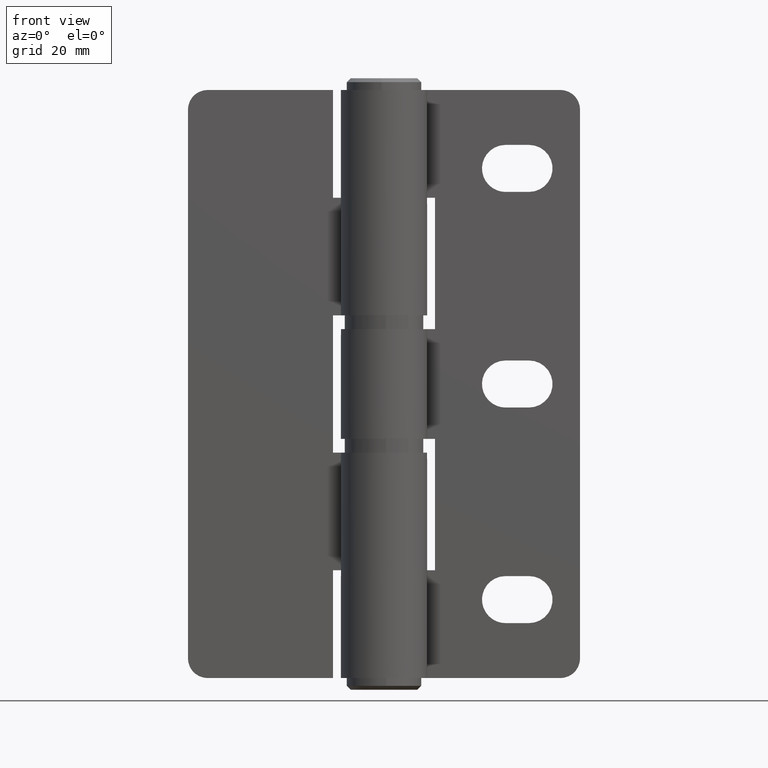
[diagram: clean part render]
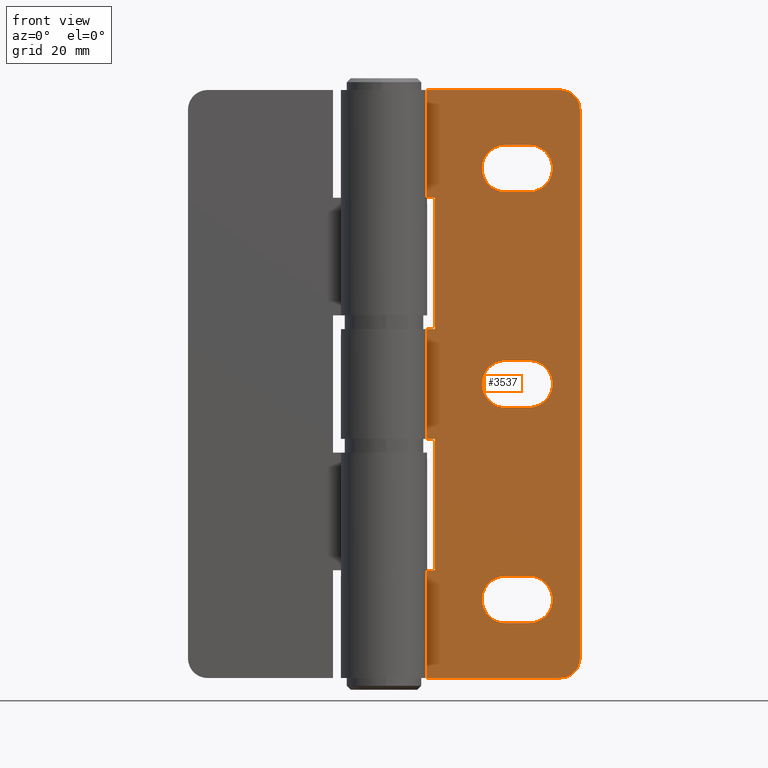
[diagram: same view with one face highlighted and labeled with its STEP entity id]
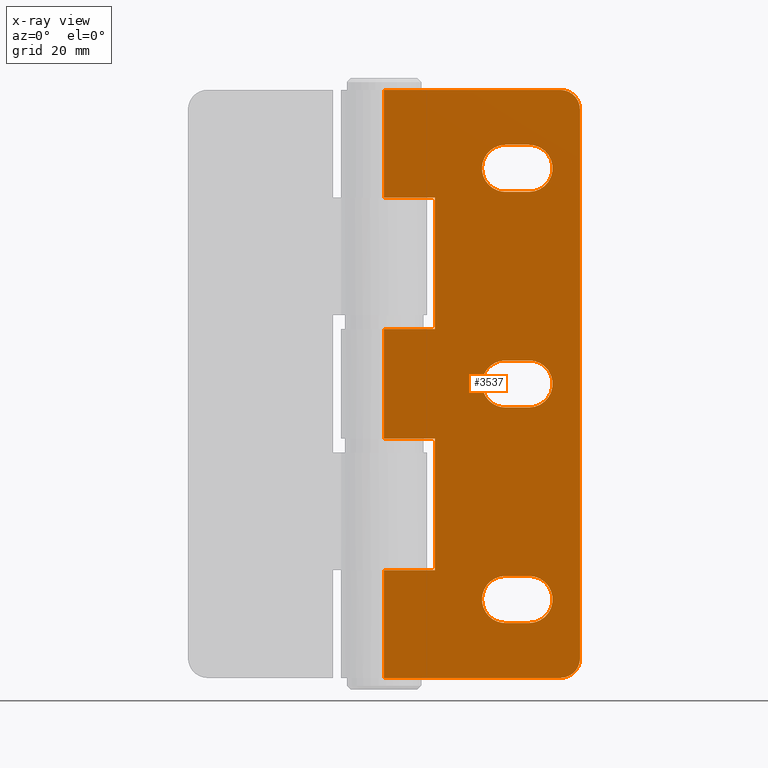
[diagram: x-ray of the same camera — body ghosted, the highlighted face saturated]
A machine part, front view. The second image highlights one B-rep face of the part: STEP entity #3537.
The next image is the same camera in x-ray: the body ghosted, the highlighted face saturated — about 0% of this face is hidden behind the body in this view.
In plain terms, the highlighted face is a freeform B-spline surface patch.
Its self-contained STEP definition (entity closure, byte-faithful):
#2177=CARTESIAN_POINT('',(13.0,6.0,89.0));
#2178=VERTEX_POINT('',#2177);
#2221=CARTESIAN_POINT('',(-8.881784E-016,6.0,89.0));
#2222=VERTEX_POINT('',#2221);
#2242=CARTESIAN_POINT('',(13.0,6.0,89.0));
#2243=CARTESIAN_POINT('',(-8.881784E-016,6.0,89.0));
#2244=QUASI_UNIFORM_CURVE('',1,(#2242,#2243),.UNSPECIFIED.,.F.,.U.);
#2245=EDGE_CURVE('',#2178,#2222,#2244,.T.);
#2257=CARTESIAN_POINT('',(-8.881784E-016,6.0,122.500000000000000));
#2258=VERTEX_POINT('',#2257);
#2313=CARTESIAN_POINT('',(13.0,6.0,122.500000000000000));
#2314=VERTEX_POINT('',#2313);
#2320=CARTESIAN_POINT('',(-8.881784E-016,6.0,122.500000000000000));
#2321=CARTESIAN_POINT('',(13.0,6.0,122.500000000000000));
#2322=QUASI_UNIFORM_CURVE('',1,(#2320,#2321),.UNSPECIFIED.,.F.,.U.);
#2323=EDGE_CURVE('',#2258,#2314,#2322,.T.);
#2340=CARTESIAN_POINT('',(13.0,6.0,122.500000000000000));
#2341=CARTESIAN_POINT('',(13.0,6.0,89.0));
#2342=QUASI_UNIFORM_CURVE('',1,(#2340,#2341),.UNSPECIFIED.,.F.,.U.);
#2343=EDGE_CURVE('',#2314,#2178,#2342,.T.);
#2383=CARTESIAN_POINT('',(-8.881784E-016,6.0,27.500000000000000));
#2384=VERTEX_POINT('',#2383);
#2404=CARTESIAN_POINT('',(13.0,6.0,27.500000000000000));
#2405=VERTEX_POINT('',#2404);
#2406=CARTESIAN_POINT('',(13.0,6.0,27.500000000000000));
#2407=CARTESIAN_POINT('',(-8.881784E-016,6.0,27.500000000000000));
#2408=QUASI_UNIFORM_CURVE('',1,(#2406,#2407),.UNSPECIFIED.,.F.,.U.);
#2409=EDGE_CURVE('',#2405,#2384,#2408,.T.);
#2433=CARTESIAN_POINT('',(-8.881784E-016,6.0,61.0));
#2434=VERTEX_POINT('',#2433);
#2489=CARTESIAN_POINT('',(13.0,6.0,61.0));
#2490=VERTEX_POINT('',#2489);
#2496=CARTESIAN_POINT('',(-8.881784E-016,6.0,61.0));
#2497=CARTESIAN_POINT('',(13.0,6.0,61.0));
#2498=QUASI_UNIFORM_CURVE('',1,(#2496,#2497),.UNSPECIFIED.,.F.,.U.);
#2499=EDGE_CURVE('',#2434,#2490,#2498,.T.);
#2516=CARTESIAN_POINT('',(13.0,6.0,61.0));
#2517=CARTESIAN_POINT('',(13.0,6.0,27.500000000000000));
#2518=QUASI_UNIFORM_CURVE('',1,(#2516,#2517),.UNSPECIFIED.,.F.,.U.);
#2519=EDGE_CURVE('',#2490,#2405,#2518,.T.);
#2538=CARTESIAN_POINT('',(45.0,6.0,0.0));
#2539=VERTEX_POINT('',#2538);
#2540=CARTESIAN_POINT('',(50.0,6.0,5.0));
#2541=VERTEX_POINT('',#2540);
#2542=CARTESIAN_POINT('',(45.0,6.0,0.0));
#2543=CARTESIAN_POINT('',(49.999999999999986,6.0,0.0));
#2544=CARTESIAN_POINT('',(49.999999999999993,6.0,5.0));
#2552=(BOUNDED_CURVE()B_SPLINE_CURVE(2,(#2542,#2543,#2544),.UNSPECIFIED.,.F.,.U.)CURVE()GEOMETRIC_REPRESENTATION_ITEM()QUASI_UNIFORM_CURVE()RATIONAL_B_SPLINE_CURVE((1.0,0.707106781186548,1.0))REPRESENTATION_ITEM(''));
#2553=EDGE_CURVE('',#2539,#2541,#2552,.T.);
#2599=CARTESIAN_POINT('',(50.0,6.0,145.0));
#2600=VERTEX_POINT('',#2599);
#2601=CARTESIAN_POINT('',(45.0,6.0,150.0));
#2602=VERTEX_POINT('',#2601);
#2603=CARTESIAN_POINT('',(49.999999999999993,6.0,145.0));
#2604=CARTESIAN_POINT('',(49.999999999999986,6.0,149.999999999999940));
#2605=CARTESIAN_POINT('',(45.0,6.0,150.0));
#2613=(BOUNDED_CURVE()B_SPLINE_CURVE(2,(#2603,#2604,#2605),.UNSPECIFIED.,.F.,.U.)CURVE()GEOMETRIC_REPRESENTATION_ITEM()QUASI_UNIFORM_CURVE()RATIONAL_B_SPLINE_CURVE((1.0,0.707106781186548,1.0))REPRESENTATION_ITEM(''));
#2614=EDGE_CURVE('',#2600,#2602,#2613,.T.);
#2683=CARTESIAN_POINT('',(31.0,6.0,136.0));
#2684=VERTEX_POINT('',#2683);
#2690=CARTESIAN_POINT('',(31.0,6.0,124.0));
#2691=VERTEX_POINT('',#2690);
#2692=CARTESIAN_POINT('',(31.0,6.0,136.0));
#2693=CARTESIAN_POINT('',(25.0,6.0,136.0));
#2694=CARTESIAN_POINT('',(25.0,6.0,130.0));
#2695=CARTESIAN_POINT('',(25.0,6.0,124.000000000000010));
#2696=CARTESIAN_POINT('',(31.0,6.0,124.0));
#2704=(BOUNDED_CURVE()B_SPLINE_CURVE(2,(#2692,#2693,#2694,#2695,#2696),.UNSPECIFIED.,.F.,.U.)B_SPLINE_CURVE_WITH_KNOTS((3,2,3),(0.0,0.500000000000000,1.0),.UNSPECIFIED.)CURVE()GEOMETRIC_REPRESENTATION_ITEM()RATIONAL_B_SPLINE_CURVE((1.0,0.707106781186548,1.0,0.707106781186548,1.0))REPRESENTATION_ITEM(''));
#2705=EDGE_CURVE('',#2684,#2691,#2704,.T.);
#2728=CARTESIAN_POINT('',(36.999999685840748,6.0,124.0));
#2729=VERTEX_POINT('',#2728);
#2730=CARTESIAN_POINT('',(36.999999685840748,6.0,124.0));
#2731=CARTESIAN_POINT('',(31.0,6.0,124.0));
#2732=QUASI_UNIFORM_CURVE('',1,(#2730,#2731),.UNSPECIFIED.,.F.,.U.);
#2733=EDGE_CURVE('',#2729,#2691,#2732,.T.);
#2781=CARTESIAN_POINT('',(36.999999685840748,6.0,136.0));
#2782=VERTEX_POINT('',#2781);
#2783=CARTESIAN_POINT('',(36.999999685840748,6.0,124.0));
#2784=CARTESIAN_POINT('',(40.464101440604850,6.000000000000001,123.999999818620100));
#2785=CARTESIAN_POINT('',(42.196152370346752,6.0,126.999999909310110));
#2786=CARTESIAN_POINT('',(43.928203300088676,6.000000000000001,130.000000000000030));
#2787=CARTESIAN_POINT('',(42.196152370346752,6.0,133.000000090690010));
#2788=CARTESIAN_POINT('',(40.464101440604850,6.000000000000001,136.000000181379870));
#2789=CARTESIAN_POINT('',(36.999999685840748,6.0,136.0));
#2797=(BOUNDED_CURVE()B_SPLINE_CURVE(2,(#2783,#2784,#2785,#2786,#2787,#2788,#2789),.UNSPECIFIED.,.F.,.U.)B_SPLINE_CURVE_WITH_KNOTS((3,2,2,3),(0.0,0.333333333333333,0.666666666666667,1.0),.UNSPECIFIED.)CURVE()GEOMETRIC_REPRESENTATION_ITEM()RATIONAL_B_SPLINE_CURVE((1.0,0.866025395057793,1.0,0.866025395057793,1.0,0.866025395057793,1.0))REPRESENTATION_ITEM(''));
#2798=EDGE_CURVE('',#2729,#2782,#2797,.T.);
#2819=CARTESIAN_POINT('',(31.0,6.0,136.0));
#2820=CARTESIAN_POINT('',(36.999999685840748,6.0,136.0));
#2821=QUASI_UNIFORM_CURVE('',1,(#2819,#2820),.UNSPECIFIED.,.F.,.U.);
#2822=EDGE_CURVE('',#2684,#2782,#2821,.T.);
#2865=CARTESIAN_POINT('',(31.0,6.0,81.0));
#2866=VERTEX_POINT('',#2865);
#2872=CARTESIAN_POINT('',(31.0,6.0,69.0));
#2873=VERTEX_POINT('',#2872);
#2874=CARTESIAN_POINT('',(31.0,6.0,81.0));
#2875=CARTESIAN_POINT('',(25.0,6.0,81.0));
#2876=CARTESIAN_POINT('',(25.0,6.0,75.0));
#2877=CARTESIAN_POINT('',(25.0,6.0,69.0));
#2878=CARTESIAN_POINT('',(31.0,6.0,68.999999999999986));
#2886=(BOUNDED_CURVE()B_SPLINE_CURVE(2,(#2874,#2875,#2876,#2877,#2878),.UNSPECIFIED.,.F.,.U.)B_SPLINE_CURVE_WITH_KNOTS((3,2,3),(0.0,0.500000000000000,1.0),.UNSPECIFIED.)CURVE()GEOMETRIC_REPRESENTATION_ITEM()RATIONAL_B_SPLINE_CURVE((1.0,0.707106781186548,1.0,0.707106781186548,1.0))REPRESENTATION_ITEM(''));
#2887=EDGE_CURVE('',#2866,#2873,#2886,.T.);
#2910=CARTESIAN_POINT('',(36.999999685840748,6.0,69.0));
#2911=VERTEX_POINT('',#2910);
#2912=CARTESIAN_POINT('',(36.999999685840748,6.0,69.0));
#2913=CARTESIAN_POINT('',(31.0,6.0,69.0));
#2914=QUASI_UNIFORM_CURVE('',1,(#2912,#2913),.UNSPECIFIED.,.F.,.U.);
#2915=EDGE_CURVE('',#2911,#2873,#2914,.T.);
#2963=CARTESIAN_POINT('',(36.999999685840748,6.0,81.0));
#2964=VERTEX_POINT('',#2963);
#2965=CARTESIAN_POINT('',(36.999999685840748,6.0,69.0));
#2966=CARTESIAN_POINT('',(40.464101440604850,6.000000000000001,68.999999818620068));
#2967=CARTESIAN_POINT('',(42.196152370346752,6.0,71.999999909310034));
#2968=CARTESIAN_POINT('',(43.928203300088676,6.000000000000001,75.0));
#2969=CARTESIAN_POINT('',(42.196152370346752,6.0,78.000000090689952));
#2970=CARTESIAN_POINT('',(40.464101440604850,6.000000000000001,81.000000181379932));
#2971=CARTESIAN_POINT('',(36.999999685840748,6.0,80.999999999999986));
#2979=(BOUNDED_CURVE()B_SPLINE_CURVE(2,(#2965,#2966,#2967,#2968,#2969,#2970,#2971),.UNSPECIFIED.,.F.,.U.)B_SPLINE_CURVE_WITH_KNOTS((3,2,2,3),(0.0,0.333333333333333,0.666666666666667,1.0),.UNSPECIFIED.)CURVE()GEOMETRIC_REPRESENTATION_ITEM()RATIONAL_B_SPLINE_CURVE((1.0,0.866025395057793,1.0,0.866025395057793,1.0,0.866025395057793,1.0))REPRESENTATION_ITEM(''));
#2980=EDGE_CURVE('',#2911,#2964,#2979,.T.);
#3001=CARTESIAN_POINT('',(31.0,6.0,81.0));
#3002=CARTESIAN_POINT('',(36.999999685840748,6.0,81.0));
#3003=QUASI_UNIFORM_CURVE('',1,(#3001,#3002),.UNSPECIFIED.,.F.,.U.);
#3004=EDGE_CURVE('',#2866,#2964,#3003,.T.);
#3049=CARTESIAN_POINT('',(37.0,6.0,14.0));
#3050=VERTEX_POINT('',#3049);
#3056=CARTESIAN_POINT('',(36.999999685840748,6.0,26.0));
#3057=VERTEX_POINT('',#3056);
#3058=CARTESIAN_POINT('',(37.0,6.0,14.0));
#3059=CARTESIAN_POINT('',(40.464101684950919,6.0,14.0));
#3060=CARTESIAN_POINT('',(42.196152475066498,6.0,17.000000090689959));
#3061=CARTESIAN_POINT('',(43.928203265182105,6.0,20.000000181379932));
#3062=CARTESIAN_POINT('',(42.196152317986872,6.0,23.000000181379932));
#3063=CARTESIAN_POINT('',(40.464101370791653,6.0,26.000000181379928));
#3064=CARTESIAN_POINT('',(36.999999685840748,6.0,25.999999999999989));
#3072=(BOUNDED_CURVE()B_SPLINE_CURVE(2,(#3058,#3059,#3060,#3061,#3062,#3063,#3064),.UNSPECIFIED.,.F.,.U.)B_SPLINE_CURVE_WITH_KNOTS((3,2,2,3),(0.0,0.333333333333333,0.666666666666667,1.0),.UNSPECIFIED.)CURVE()GEOMETRIC_REPRESENTATION_ITEM()RATIONAL_B_SPLINE_CURVE((1.0,0.866025399421116,1.0,0.866025399421116,1.0,0.866025399421116,1.0))REPRESENTATION_ITEM(''));
#3073=EDGE_CURVE('',#3050,#3057,#3072,.T.);
#3095=CARTESIAN_POINT('',(31.000000104719749,6.0,14.0));
#3096=VERTEX_POINT('',#3095);
#3102=CARTESIAN_POINT('',(31.000000104719749,6.0,14.0));
#3103=CARTESIAN_POINT('',(37.0,6.0,14.0));
#3104=QUASI_UNIFORM_CURVE('',1,(#3102,#3103),.UNSPECIFIED.,.F.,.U.);
#3105=EDGE_CURVE('',#3096,#3050,#3104,.T.);
#3146=CARTESIAN_POINT('',(30.999999685840748,6.0,26.0));
#3147=VERTEX_POINT('',#3146);
#3153=CARTESIAN_POINT('',(30.999999685840748,6.0,25.999999999999989));
#3154=CARTESIAN_POINT('',(24.999999790560516,6.000000000000001,25.999999685840752));
#3155=CARTESIAN_POINT('',(25.0,6.0,19.999999790560508));
#3156=CARTESIAN_POINT('',(25.000000209439499,6.000000000000001,13.999999895280254));
#3157=CARTESIAN_POINT('',(31.000000104719749,6.0,14.0));
#3165=(BOUNDED_CURVE()B_SPLINE_CURVE(2,(#3153,#3154,#3155,#3156,#3157),.UNSPECIFIED.,.F.,.U.)B_SPLINE_CURVE_WITH_KNOTS((3,2,3),(0.0,0.500000000000000,1.0),.UNSPECIFIED.)CURVE()GEOMETRIC_REPRESENTATION_ITEM()RATIONAL_B_SPLINE_CURVE((1.0,0.707106787357218,1.0,0.707106787357218,1.0))REPRESENTATION_ITEM(''));
#3166=EDGE_CURVE('',#3147,#3096,#3165,.T.);
#3183=CARTESIAN_POINT('',(36.999999685840748,6.0,26.0));
#3184=CARTESIAN_POINT('',(30.999999685840748,6.0,26.0));
#3185=QUASI_UNIFORM_CURVE('',1,(#3183,#3184),.UNSPECIFIED.,.F.,.U.);
#3186=EDGE_CURVE('',#3057,#3147,#3185,.T.);
#3205=CARTESIAN_POINT('',(-8.881784E-016,6.0,0.0));
#3206=VERTEX_POINT('',#3205);
#3207=CARTESIAN_POINT('',(-8.881784E-016,6.0,0.0));
#3208=CARTESIAN_POINT('',(45.0,6.0,0.0));
#3209=QUASI_UNIFORM_CURVE('',1,(#3207,#3208),.UNSPECIFIED.,.F.,.U.);
#3210=EDGE_CURVE('',#3206,#2539,#3209,.T.);
#3267=CARTESIAN_POINT('',(-8.881784E-016,6.0,150.0));
#3268=VERTEX_POINT('',#3267);
#3269=CARTESIAN_POINT('',(-8.881784E-016,6.0,150.0));
#3270=CARTESIAN_POINT('',(45.0,6.0,150.0));
#3271=QUASI_UNIFORM_CURVE('',1,(#3269,#3270),.UNSPECIFIED.,.F.,.U.);
#3272=EDGE_CURVE('',#3268,#2602,#3271,.T.);
#3394=CARTESIAN_POINT('',(50.0,6.0,145.0));
#3395=CARTESIAN_POINT('',(50.0,6.0,5.0));
#3396=QUASI_UNIFORM_CURVE('',1,(#3394,#3395),.UNSPECIFIED.,.F.,.U.);
#3397=EDGE_CURVE('',#2600,#2541,#3396,.T.);
#3431=CARTESIAN_POINT('',(-8.881784E-016,6.0,27.500000000000000));
#3432=CARTESIAN_POINT('',(-8.881784E-016,6.0,0.0));
#3433=QUASI_UNIFORM_CURVE('',1,(#3431,#3432),.UNSPECIFIED.,.F.,.U.);
#3434=EDGE_CURVE('',#2384,#3206,#3433,.T.);
#3490=CARTESIAN_POINT('',(-2.497499903090296,6.0,-7.492499709270897));
#3491=CARTESIAN_POINT('',(-2.497499903090296,6.0,157.492503732584400));
#3492=CARTESIAN_POINT('',(52.497501244194808,6.0,-7.492499709270897));
#3493=CARTESIAN_POINT('',(52.497501244194808,6.0,157.492503732584400));
#3494=B_SPLINE_SURFACE_WITH_KNOTS('',1,1,((#3490,#3492),(#3491,#3493)),.UNSPECIFIED.,.F.,.F.,.U.,(2,2),(2,2),(0.0,164.985003441855300),(0.0,54.995001147285102),.UNSPECIFIED.);
#3495=CARTESIAN_POINT('',(-8.881784E-016,6.0,150.0));
#3496=CARTESIAN_POINT('',(-8.881784E-016,6.0,122.500000000000000));
#3497=QUASI_UNIFORM_CURVE('',1,(#3495,#3496),.UNSPECIFIED.,.F.,.U.);
#3498=EDGE_CURVE('',#3268,#2258,#3497,.T.);
#3499=ORIENTED_EDGE('',*,*,#3498,.T.);
#3500=ORIENTED_EDGE('',*,*,#2323,.T.);
#3501=ORIENTED_EDGE('',*,*,#2343,.T.);
#3502=ORIENTED_EDGE('',*,*,#2245,.T.);
#3503=CARTESIAN_POINT('',(-8.881784E-016,6.0,89.0));
#3504=CARTESIAN_POINT('',(-8.881784E-016,6.0,61.0));
#3505=QUASI_UNIFORM_CURVE('',1,(#3503,#3504),.UNSPECIFIED.,.F.,.U.);
#3506=EDGE_CURVE('',#2222,#2434,#3505,.T.);
#3507=ORIENTED_EDGE('',*,*,#3506,.T.);
#3508=ORIENTED_EDGE('',*,*,#2499,.T.);
#3509=ORIENTED_EDGE('',*,*,#2519,.T.);
#3510=ORIENTED_EDGE('',*,*,#2409,.T.);
#3511=ORIENTED_EDGE('',*,*,#3434,.T.);
#3512=ORIENTED_EDGE('',*,*,#3210,.T.);
#3513=ORIENTED_EDGE('',*,*,#2553,.T.);
#3514=ORIENTED_EDGE('',*,*,#3397,.F.);
#3515=ORIENTED_EDGE('',*,*,#2614,.T.);
#3516=ORIENTED_EDGE('',*,*,#3272,.F.);
#3517=EDGE_LOOP('',(#3499,#3500,#3501,#3502,#3507,#3508,#3509,#3510,#3511,#3512,#3513,#3514,#3515,#3516));
#3518=FACE_OUTER_BOUND('',#3517,.T.);
#3519=ORIENTED_EDGE('',*,*,#2887,.F.);
#3520=ORIENTED_EDGE('',*,*,#3004,.T.);
#3521=ORIENTED_EDGE('',*,*,#2980,.F.);
#3522=ORIENTED_EDGE('',*,*,#2915,.T.);
#3523=EDGE_LOOP('',(#3519,#3520,#3521,#3522));
#3524=FACE_BOUND('',#3523,.T.);
#3525=ORIENTED_EDGE('',*,*,#2705,.F.);
#3526=ORIENTED_EDGE('',*,*,#2822,.T.);
#3527=ORIENTED_EDGE('',*,*,#2798,.F.);
#3528=ORIENTED_EDGE('',*,*,#2733,.T.);
#3529=EDGE_LOOP('',(#3525,#3526,#3527,#3528));
#3530=FACE_BOUND('',#3529,.T.);
#3531=ORIENTED_EDGE('',*,*,#3186,.F.);
#3532=ORIENTED_EDGE('',*,*,#3073,.F.);
#3533=ORIENTED_EDGE('',*,*,#3105,.F.);
#3534=ORIENTED_EDGE('',*,*,#3166,.F.);
#3535=EDGE_LOOP('',(#3531,#3532,#3533,#3534));
#3536=FACE_BOUND('',#3535,.T.);
#3537=ADVANCED_FACE('',(#3518,#3524,#3530,#3536),#3494,.F.);